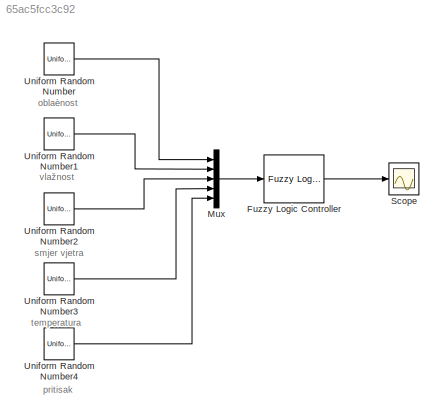
MODEL slx_65ac5fcc3c92
KIND model
BLOCK [Reference] Fuzzy Logic  Controller  REF=fuzblock/Fuzzy Logic   (lib defined in mdl_858b3b3e7478)
Controller
  FIS = zzz
  Ports = [1, 1]
  RTWMemSecDataConstants = Inherit from model
  RTWMemSecDataInternal = Inherit from model
  RTWMemSecDataParameters = Inherit from model
  RTWMemSecFuncExecute = Inherit from model
  RTWMemSecFuncInitTerm = Inherit from model
  SourceBlock = fuzblock/Fuzzy Logic \nController
  SourceType = Fuzzy Inference System
BLOCK [Mux] Mux
  DisplayOption = bar
  Inputs = 5
  Ports = [5, 1]
BLOCK [Scope] Scope
  DataFormat = StructureWithTime
  Decimation = 1
  Floating = off
  Grid = on
  LimitDataPoints = on
  MaxDataPoints = 5000
  NumInputPorts = 1
  Ports = [1]
  SampleInput = off
  SampleTime = -1
  SaveName = ScopeData
  SaveToWorkspace = off
  ShowLegends = off
  TickLabels = OneTimeTick
  TimeRange = auto
  YMax = 10
  YMin = -10
  ZoomMode = on
BLOCK [UniformRandomNumber] Uniform Random Number
  Maximum = 10
  Minimum = 0
  SampleTime = 0.1
BLOCK [UniformRandomNumber] Uniform Random Number1
  Maximum = 100
  Minimum = 0
  SampleTime = 0.1
BLOCK [UniformRandomNumber] Uniform Random Number2
  Maximum = 360
  Minimum = 0
  SampleTime = 0.1
BLOCK [UniformRandomNumber] Uniform Random Number3
  Maximum = 40
  Minimum = 0
  SampleTime = 0.1
BLOCK [UniformRandomNumber] Uniform Random Number4
  Maximum = 1030
  Minimum = 990
  SampleTime = 0.1
ANNOTATION (root): oblaènost
ANNOTATION (root): pritisak
ANNOTATION (root): smjer vjetra
ANNOTATION (root): temperatura
ANNOTATION (root): vlažnost
LINE Fuzzy Logic  Controller:1 -> Scope:1
LINE Mux:1 -> Fuzzy Logic  Controller:1
LINE Uniform Random Number1:1 -> Mux:2
LINE Uniform Random Number2:1 -> Mux:3
LINE Uniform Random Number3:1 -> Mux:4
LINE Uniform Random Number4:1 -> Mux:5
LINE Uniform Random Number:1 -> Mux:1
